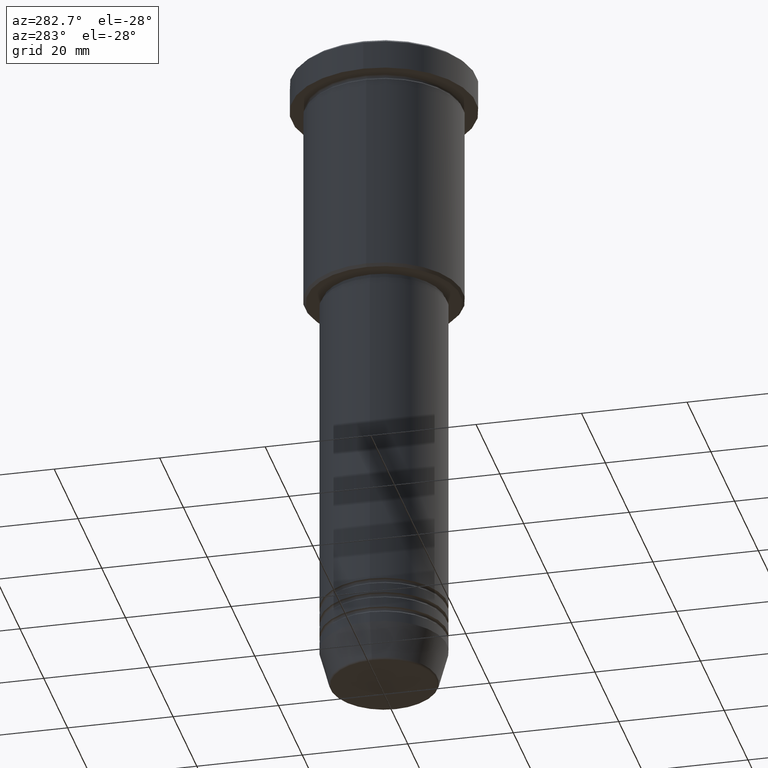
[diagram: clean part render]
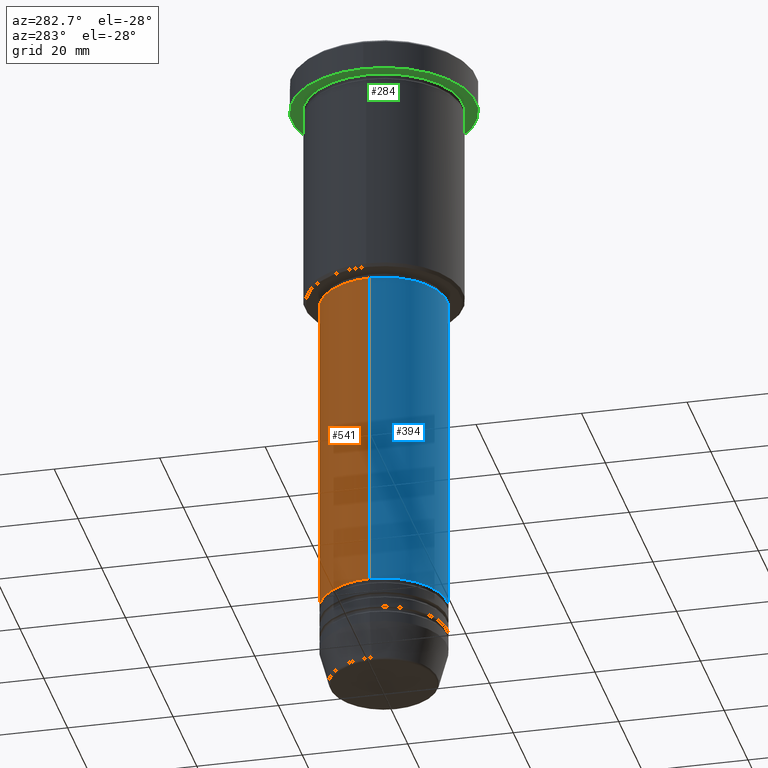
[diagram: same view with three faces highlighted in distinct colors, each labeled with its STEP entity id]
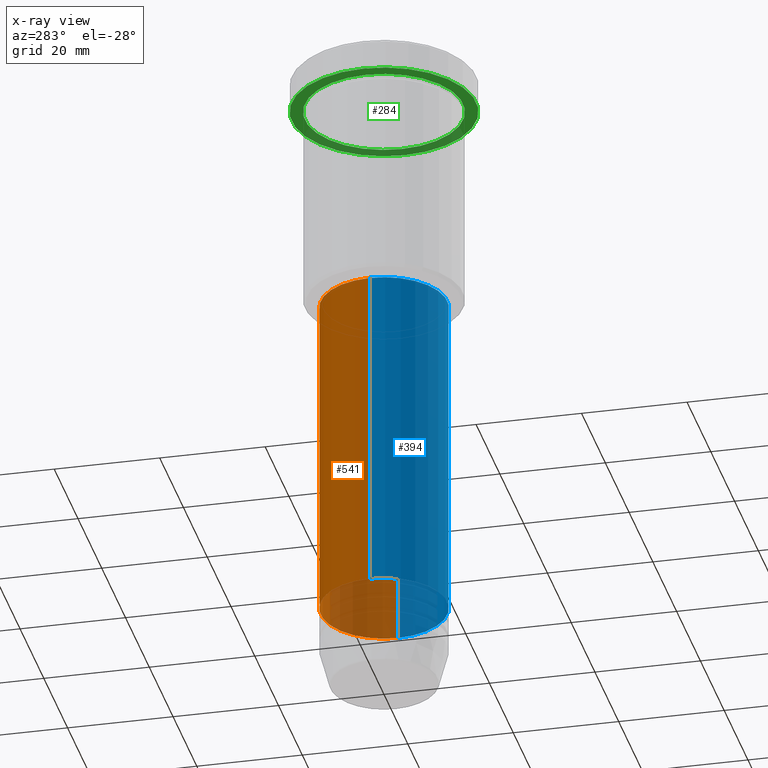
[diagram: x-ray of the same camera — body ghosted, the three highlighted faces saturated]
A machine part, auxiliary view with three faces highlighted in distinct colors.
The next image is the same camera in x-ray (body ghosted, the three faces saturated) — at least one of them is partly hidden behind the body in this view.
Their STEP definitions:

[orange] entity #541 — the highlighted cylindrical surface (partial cylindrical patch) has radius 12 mm, axis along (-0, -0, 1).
#6 = CIRCLE ( 'NONE', #734, 12.00000000000000000 ) ;
#8 = CYLINDRICAL_SURFACE ( 'NONE', #101, 12.00000000000000000 ) ;
#34 = VECTOR ( 'NONE', #854, 1000.000000000000000 ) ;
#73 = DIRECTION ( 'NONE',  ( -0.000000000000000000, -0.000000000000000000, 1.000000000000000000 ) ) ;
#101 = AXIS2_PLACEMENT_3D ( 'NONE', #365, #1011, #1005 ) ;
#109 = ORIENTED_EDGE ( 'NONE', *, *, #605, .T. ) ;
#202 = VERTEX_POINT ( 'NONE', #1030 ) ;
#256 = DIRECTION ( 'NONE',  ( -0.000000000000000000, -0.000000000000000000, 1.000000000000000000 ) ) ;
#362 = EDGE_CURVE ( 'NONE', #444, #202, #856, .T. ) ;
#365 = CARTESIAN_POINT ( 'NONE',  ( 0.000000000000000000, 0.000000000000000000, 0.000000000000000000 ) ) ;
#423 = VERTEX_POINT ( 'NONE', #1062 ) ;
#430 = DIRECTION ( 'NONE',  ( -0.000000000000000000, -0.000000000000000000, 1.000000000000000000 ) ) ;
#444 = VERTEX_POINT ( 'NONE', #1170 ) ;
#492 = ORIENTED_EDGE ( 'NONE', *, *, #362, .F. ) ;
#494 = ORIENTED_EDGE ( 'NONE', *, *, #757, .T. ) ;
#541 = ADVANCED_FACE ( 'NONE', ( #818 ), #8, .T. ) ;
#605 = EDGE_CURVE ( 'NONE', #423, #202, #826, .T. ) ;
#614 = VERTEX_POINT ( 'NONE', #928 ) ;
#670 = CARTESIAN_POINT ( 'NONE',  ( -12.00000000000000000, 1.469576158976823947E-15, 0.000000000000000000 ) ) ;
#734 = AXIS2_PLACEMENT_3D ( 'NONE', #1159, #430, #980 ) ;
#757 = EDGE_CURVE ( 'NONE', #614, #423, #6, .T. ) ;
#772 = DIRECTION ( 'NONE',  ( 1.000000000000000000, 0.000000000000000000, 0.000000000000000000 ) ) ;
#803 = CARTESIAN_POINT ( 'NONE',  ( 0.000000000000000000, 0.000000000000000000, -46.99999999999999289 ) ) ;
#806 = EDGE_CURVE ( 'NONE', #614, #444, #1065, .T. ) ;
#818 = FACE_OUTER_BOUND ( 'NONE', #988, .T. ) ;
#825 = VECTOR ( 'NONE', #256, 1000.000000000000000 ) ;
#826 = LINE ( 'NONE', #670, #34 ) ;
#854 = DIRECTION ( 'NONE',  ( -0.000000000000000000, -0.000000000000000000, 1.000000000000000000 ) ) ;
#856 = CIRCLE ( 'NONE', #881, 12.00000000000000000 ) ;
#881 = AXIS2_PLACEMENT_3D ( 'NONE', #803, #73, #772 ) ;
#928 = CARTESIAN_POINT ( 'NONE',  ( 12.00000000000000000, 0.000000000000000000, -109.9999999999999574 ) ) ;
#973 = CARTESIAN_POINT ( 'NONE',  ( 12.00000000000000000, 0.000000000000000000, 0.000000000000000000 ) ) ;
#980 = DIRECTION ( 'NONE',  ( 1.000000000000000000, 0.000000000000000000, 0.000000000000000000 ) ) ;
#988 = EDGE_LOOP ( 'NONE', ( #494, #109, #492, #1074 ) ) ;
#1005 = DIRECTION ( 'NONE',  ( 1.000000000000000000, 0.000000000000000000, 0.000000000000000000 ) ) ;
#1011 = DIRECTION ( 'NONE',  ( -0.000000000000000000, -0.000000000000000000, 1.000000000000000000 ) ) ;
#1030 = CARTESIAN_POINT ( 'NONE',  ( -12.00000000000000000, 1.469576158976823947E-15, -46.99999999999999289 ) ) ;
#1062 = CARTESIAN_POINT ( 'NONE',  ( -12.00000000000000000, 1.469576158976823947E-15, -109.9999999999999574 ) ) ;
#1065 = LINE ( 'NONE', #973, #825 ) ;
#1074 = ORIENTED_EDGE ( 'NONE', *, *, #806, .F. ) ;
#1159 = CARTESIAN_POINT ( 'NONE',  ( 0.000000000000000000, 0.000000000000000000, -109.9999999999999574 ) ) ;
#1170 = CARTESIAN_POINT ( 'NONE',  ( 12.00000000000000000, 0.000000000000000000, -46.99999999999999289 ) ) ;

[blue] entity #394 — the highlighted cylindrical surface (partial cylindrical patch) has radius 12 mm, axis along (-0, -0, 1).
#34 = VECTOR ( 'NONE', #854, 1000.000000000000000 ) ;
#51 = DIRECTION ( 'NONE',  ( 1.000000000000000000, 0.000000000000000000, 0.000000000000000000 ) ) ;
#60 = CARTESIAN_POINT ( 'NONE',  ( 0.000000000000000000, 0.000000000000000000, 0.000000000000000000 ) ) ;
#202 = VERTEX_POINT ( 'NONE', #1030 ) ;
#244 = EDGE_LOOP ( 'NONE', ( #697, #585, #388, #457 ) ) ;
#256 = DIRECTION ( 'NONE',  ( -0.000000000000000000, -0.000000000000000000, 1.000000000000000000 ) ) ;
#287 = EDGE_CURVE ( 'NONE', #202, #444, #328, .T. ) ;
#325 = FACE_OUTER_BOUND ( 'NONE', #244, .T. ) ;
#328 = CIRCLE ( 'NONE', #486, 12.00000000000000000 ) ;
#374 = AXIS2_PLACEMENT_3D ( 'NONE', #440, #1162, #51 ) ;
#384 = EDGE_CURVE ( 'NONE', #423, #614, #807, .T. ) ;
#388 = ORIENTED_EDGE ( 'NONE', *, *, #806, .T. ) ;
#394 = ADVANCED_FACE ( 'NONE', ( #325 ), #887, .T. ) ;
#423 = VERTEX_POINT ( 'NONE', #1062 ) ;
#440 = CARTESIAN_POINT ( 'NONE',  ( 0.000000000000000000, 0.000000000000000000, -109.9999999999999574 ) ) ;
#444 = VERTEX_POINT ( 'NONE', #1170 ) ;
#449 = AXIS2_PLACEMENT_3D ( 'NONE', #60, #1069, #961 ) ;
#457 = ORIENTED_EDGE ( 'NONE', *, *, #287, .F. ) ;
#486 = AXIS2_PLACEMENT_3D ( 'NONE', #1031, #930, #545 ) ;
#545 = DIRECTION ( 'NONE',  ( 1.000000000000000000, 0.000000000000000000, 0.000000000000000000 ) ) ;
#585 = ORIENTED_EDGE ( 'NONE', *, *, #384, .T. ) ;
#605 = EDGE_CURVE ( 'NONE', #423, #202, #826, .T. ) ;
#614 = VERTEX_POINT ( 'NONE', #928 ) ;
#670 = CARTESIAN_POINT ( 'NONE',  ( -12.00000000000000000, 1.469576158976823947E-15, 0.000000000000000000 ) ) ;
#697 = ORIENTED_EDGE ( 'NONE', *, *, #605, .F. ) ;
#806 = EDGE_CURVE ( 'NONE', #614, #444, #1065, .T. ) ;
#807 = CIRCLE ( 'NONE', #374, 12.00000000000000000 ) ;
#825 = VECTOR ( 'NONE', #256, 1000.000000000000000 ) ;
#826 = LINE ( 'NONE', #670, #34 ) ;
#854 = DIRECTION ( 'NONE',  ( -0.000000000000000000, -0.000000000000000000, 1.000000000000000000 ) ) ;
#887 = CYLINDRICAL_SURFACE ( 'NONE', #449, 12.00000000000000000 ) ;
#928 = CARTESIAN_POINT ( 'NONE',  ( 12.00000000000000000, 0.000000000000000000, -109.9999999999999574 ) ) ;
#930 = DIRECTION ( 'NONE',  ( -0.000000000000000000, -0.000000000000000000, 1.000000000000000000 ) ) ;
#961 = DIRECTION ( 'NONE',  ( 1.000000000000000000, 0.000000000000000000, 0.000000000000000000 ) ) ;
#973 = CARTESIAN_POINT ( 'NONE',  ( 12.00000000000000000, 0.000000000000000000, 0.000000000000000000 ) ) ;
#1030 = CARTESIAN_POINT ( 'NONE',  ( -12.00000000000000000, 1.469576158976823947E-15, -46.99999999999999289 ) ) ;
#1031 = CARTESIAN_POINT ( 'NONE',  ( 0.000000000000000000, 0.000000000000000000, -46.99999999999999289 ) ) ;
#1062 = CARTESIAN_POINT ( 'NONE',  ( -12.00000000000000000, 1.469576158976823947E-15, -109.9999999999999574 ) ) ;
#1065 = LINE ( 'NONE', #973, #825 ) ;
#1069 = DIRECTION ( 'NONE',  ( -0.000000000000000000, -0.000000000000000000, 1.000000000000000000 ) ) ;
#1162 = DIRECTION ( 'NONE',  ( -0.000000000000000000, -0.000000000000000000, 1.000000000000000000 ) ) ;
#1170 = CARTESIAN_POINT ( 'NONE',  ( 12.00000000000000000, 0.000000000000000000, -46.99999999999999289 ) ) ;

[green] entity #284 — the highlighted planar face has unit normal (0, 0, -1).
#3 = EDGE_CURVE ( 'NONE', #1064, #848, #976, .T. ) ;
#76 = EDGE_LOOP ( 'NONE', ( #161, #183 ) ) ;
#119 = CIRCLE ( 'NONE', #431, 17.50000000000000000 ) ;
#139 = VERTEX_POINT ( 'NONE', #678 ) ;
#153 = ORIENTED_EDGE ( 'NONE', *, *, #162, .F. ) ;
#161 = ORIENTED_EDGE ( 'NONE', *, *, #297, .T. ) ;
#162 = EDGE_CURVE ( 'NONE', #139, #630, #387, .T. ) ;
#183 = ORIENTED_EDGE ( 'NONE', *, *, #3, .T. ) ;
#255 = AXIS2_PLACEMENT_3D ( 'NONE', #507, #321, #414 ) ;
#284 = ADVANCED_FACE ( 'NONE', ( #600, #515 ), #870, .T. ) ;
#297 = EDGE_CURVE ( 'NONE', #848, #1064, #992, .T. ) ;
#321 = DIRECTION ( 'NONE',  ( -0.000000000000000000, -0.000000000000000000, 1.000000000000000000 ) ) ;
#324 = CARTESIAN_POINT ( 'NONE',  ( -15.00000000000000000, 0.000000000000000000, -5.999999999999994671 ) ) ;
#387 = CIRCLE ( 'NONE', #255, 17.50000000000000000 ) ;
#392 = DIRECTION ( 'NONE',  ( 0.000000000000000000, 0.000000000000000000, -1.000000000000000000 ) ) ;
#396 = CARTESIAN_POINT ( 'NONE',  ( 17.50000000000000000, 0.000000000000000000, -5.999999999999995559 ) ) ;
#414 = DIRECTION ( 'NONE',  ( 1.000000000000000000, 0.000000000000000000, 0.000000000000000000 ) ) ;
#431 = AXIS2_PLACEMENT_3D ( 'NONE', #994, #562, #911 ) ;
#502 = CARTESIAN_POINT ( 'NONE',  ( 0.000000000000000000, 0.000000000000000000, -5.999999999999995559 ) ) ;
#507 = CARTESIAN_POINT ( 'NONE',  ( 0.000000000000000000, 0.000000000000000000, -5.999999999999995559 ) ) ;
#515 = FACE_OUTER_BOUND ( 'NONE', #770, .T. ) ;
#562 = DIRECTION ( 'NONE',  ( -0.000000000000000000, -0.000000000000000000, 1.000000000000000000 ) ) ;
#568 = ORIENTED_EDGE ( 'NONE', *, *, #1015, .F. ) ;
#596 = AXIS2_PLACEMENT_3D ( 'NONE', #1150, #978, #861 ) ;
#600 = FACE_BOUND ( 'NONE', #76, .T. ) ;
#606 = CARTESIAN_POINT ( 'NONE',  ( 15.00000000000000000, 1.836970198721029589E-15, -5.999999999999994671 ) ) ;
#630 = VERTEX_POINT ( 'NONE', #396 ) ;
#658 = CARTESIAN_POINT ( 'NONE',  ( 0.000000000000000000, 17.50000000000000000, -5.999999999999995559 ) ) ;
#678 = CARTESIAN_POINT ( 'NONE',  ( -17.50000000000000000, 2.143131898507868248E-15, -5.999999999999995559 ) ) ;
#748 = DIRECTION ( 'NONE',  ( -1.000000000000000000, 0.000000000000000000, -0.000000000000000000 ) ) ;
#770 = EDGE_LOOP ( 'NONE', ( #568, #153 ) ) ;
#834 = AXIS2_PLACEMENT_3D ( 'NONE', #658, #392, #748 ) ;
#848 = VERTEX_POINT ( 'NONE', #324 ) ;
#861 = DIRECTION ( 'NONE',  ( -1.000000000000000000, 0.000000000000000000, 0.000000000000000000 ) ) ;
#870 = PLANE ( 'NONE',  #834 ) ;
#895 = DIRECTION ( 'NONE',  ( -1.000000000000000000, 0.000000000000000000, 0.000000000000000000 ) ) ;
#911 = DIRECTION ( 'NONE',  ( 1.000000000000000000, 0.000000000000000000, 0.000000000000000000 ) ) ;
#953 = DIRECTION ( 'NONE',  ( -0.000000000000000000, -0.000000000000000000, 1.000000000000000000 ) ) ;
#976 = CIRCLE ( 'NONE', #596, 15.00000000000000000 ) ;
#978 = DIRECTION ( 'NONE',  ( -0.000000000000000000, -0.000000000000000000, 1.000000000000000000 ) ) ;
#992 = CIRCLE ( 'NONE', #1140, 15.00000000000000000 ) ;
#994 = CARTESIAN_POINT ( 'NONE',  ( 0.000000000000000000, 0.000000000000000000, -5.999999999999995559 ) ) ;
#1015 = EDGE_CURVE ( 'NONE', #630, #139, #119, .T. ) ;
#1064 = VERTEX_POINT ( 'NONE', #606 ) ;
#1140 = AXIS2_PLACEMENT_3D ( 'NONE', #502, #953, #895 ) ;
#1150 = CARTESIAN_POINT ( 'NONE',  ( 0.000000000000000000, 0.000000000000000000, -5.999999999999995559 ) ) ;